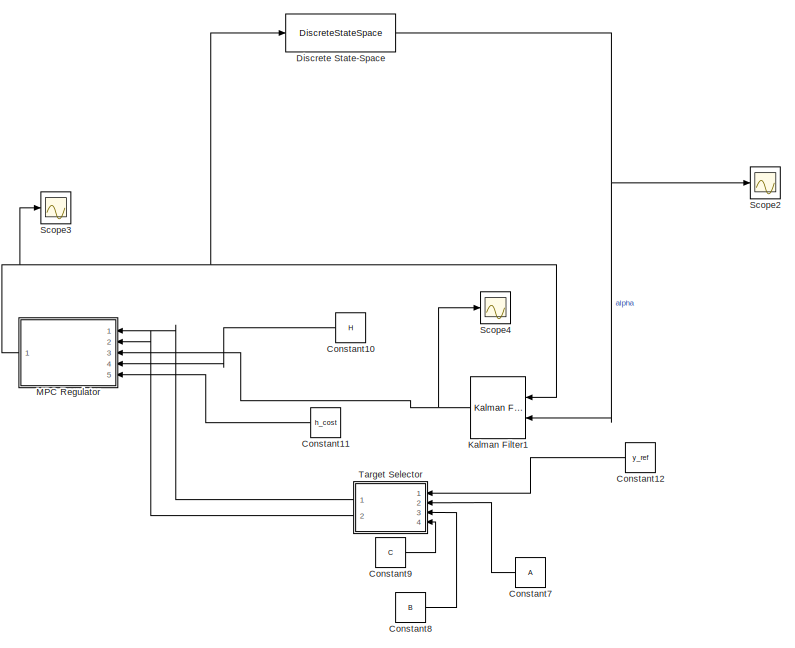
[diagram: root canvas - part 1/4, top right region]
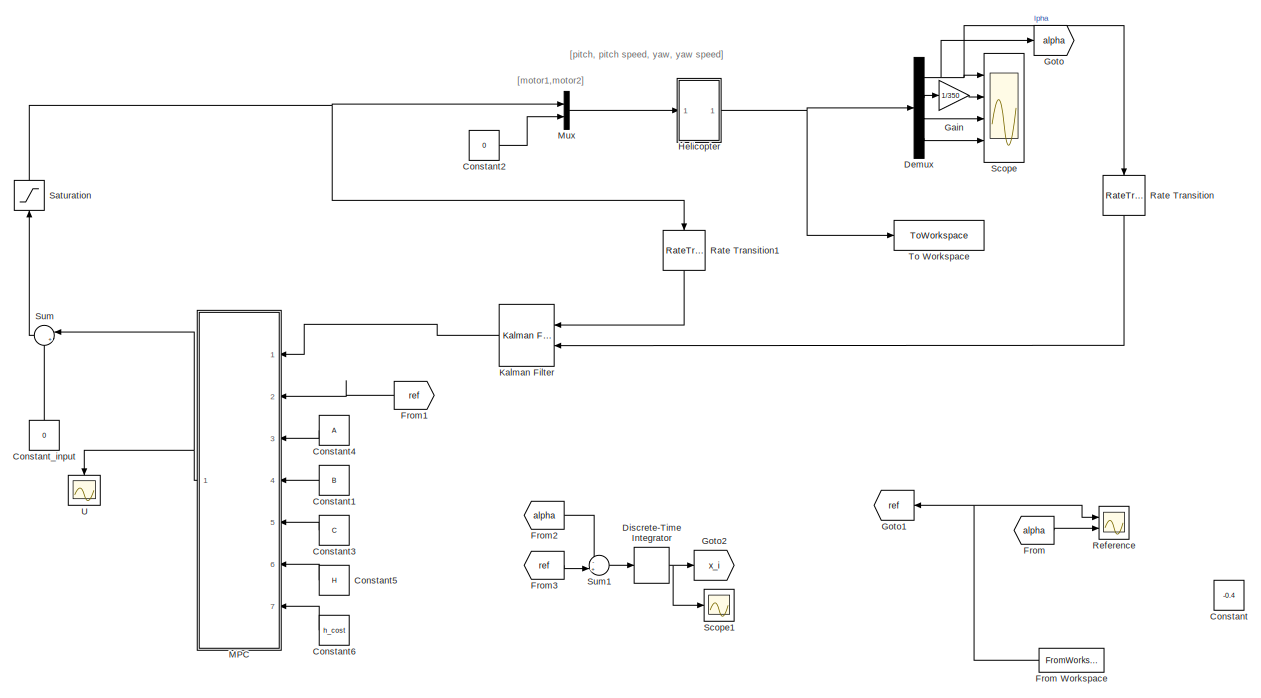
[diagram: root canvas - part 2/4, top left region]
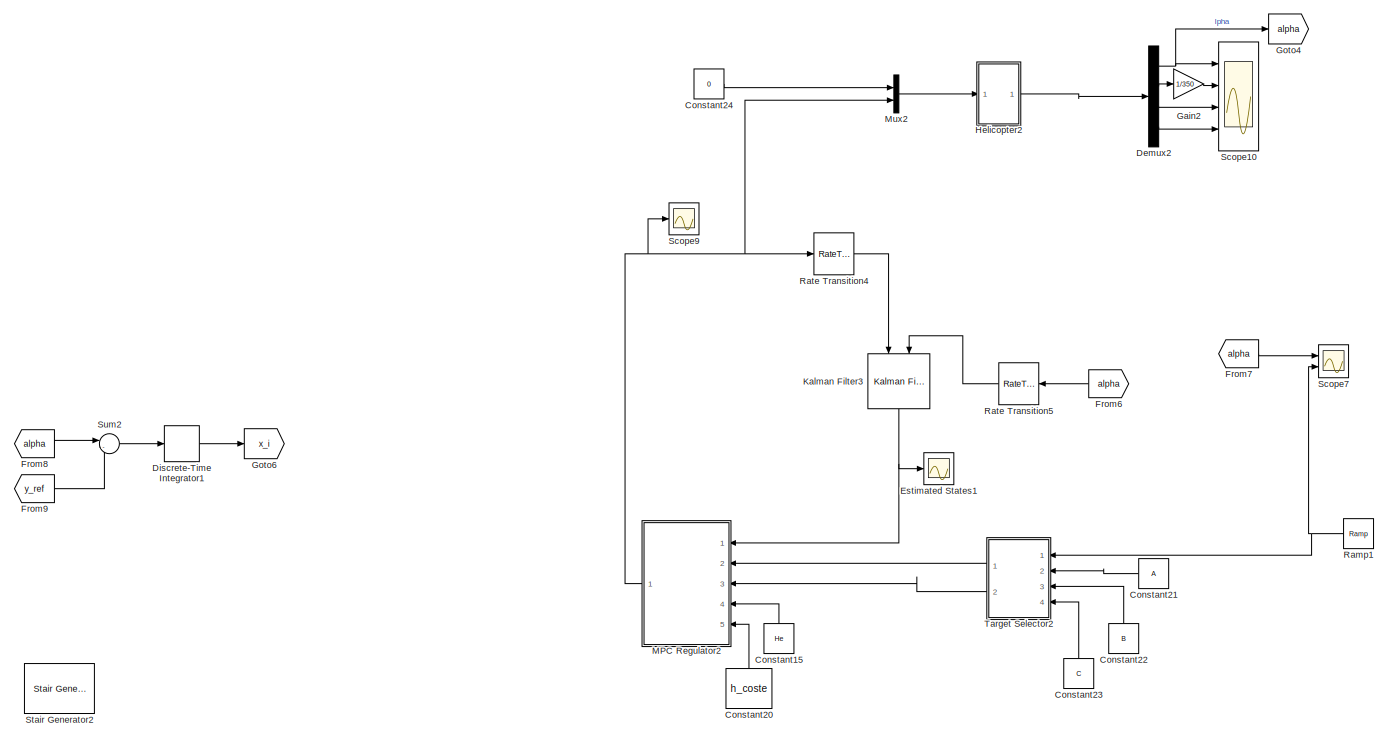
[diagram: root canvas - part 3/4, bottom right region]
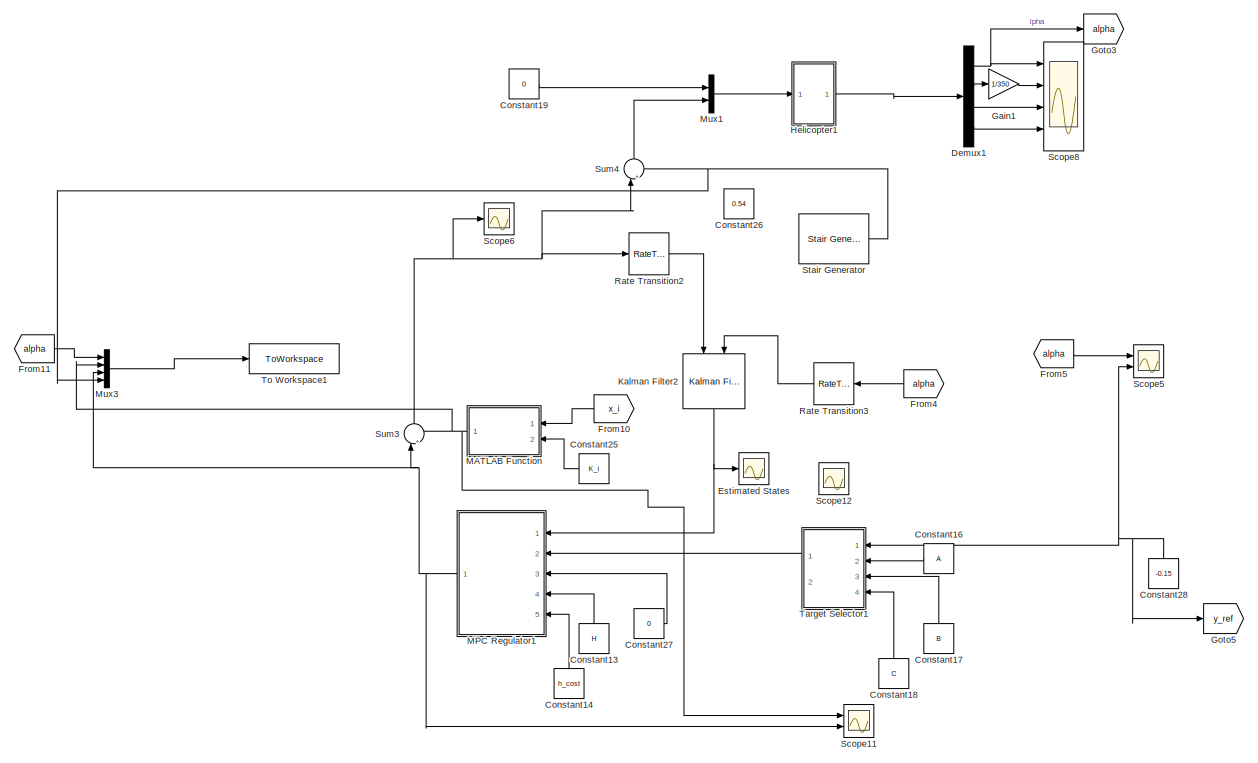
[diagram: root canvas - part 4/4, bottom left region]
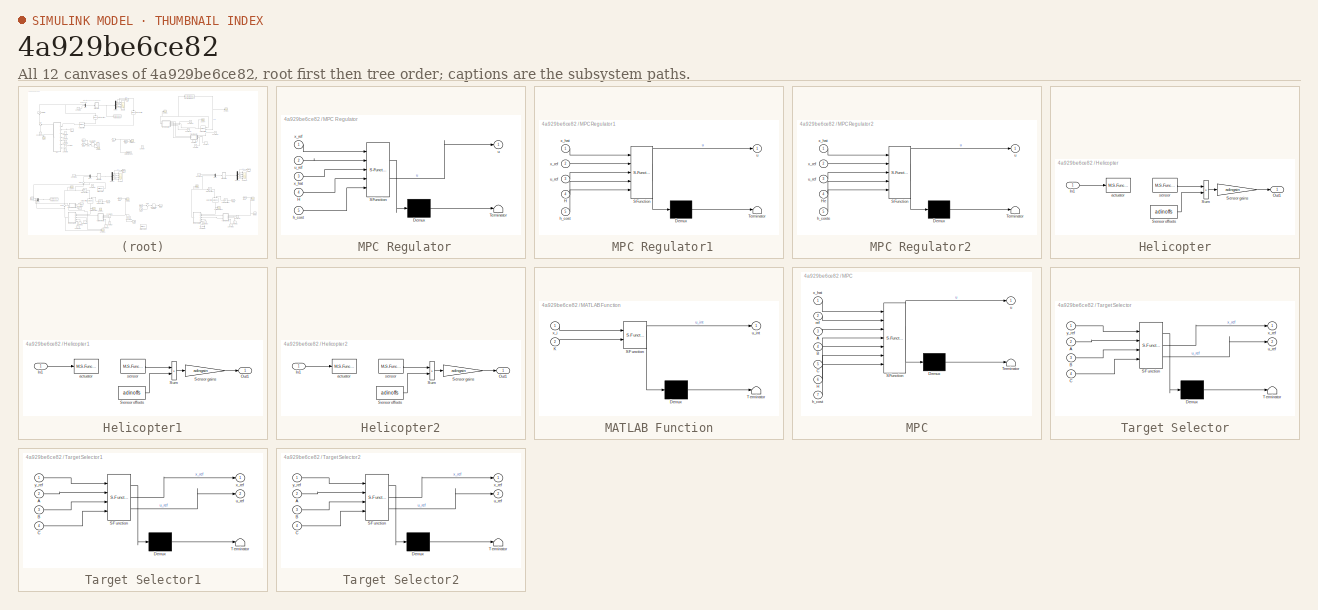
[diagram: thumbnail index - all 12 canvases of the model, root first then tree order]
MODEL slx_4a929be6ce82
KIND model
CONFIG AbsTol = auto
CONFIG EnableMultiTasking = off
CONFIG FixedStep = auto
CONFIG InitFcn = hwinit
CONFIG MaxStep = auto
CONFIG MinStep = auto
CONFIG RelTol = 1e-3
CONFIG SampleTimeConstraint = Unconstrained
CONFIG SolverName = ode45
CONFIG StartTime = 0.0
CONFIG StopTime = Tsim
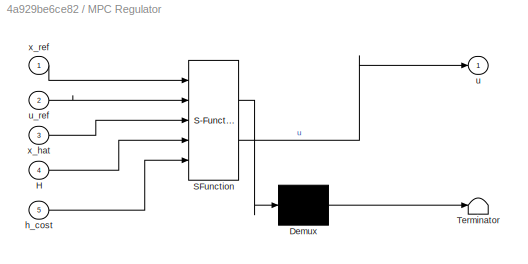
BLOCK [SubSystem]  MPC Regulator
  Commented = on
  ErrorFcn = Stateflow.Translate.translate
  NameLocation = top
  PermitHierarchicalResolution = ExplicitOnly
  Ports = [5, 1]
  RequestExecContextInheritance = off
  SFBlockType = MATLAB Function
  TreatAsAtomicUnit = on
BLOCK [Demux]  MPC Regulator/ Demux 
  Outputs = 1
  Ports = [1, 1]
BLOCK [S-Function]  MPC Regulator/ SFunction 
  EnableBusSupport = on
  FunctionName = sf_sfun
  PortCounts = [5 2]
  Ports = [5, 2]
  SFcnIsStateOwnerBlock = off
  SFunctionDeploymentMode = off
  Tag = Stateflow S-Function 1
BLOCK [Terminator]  MPC Regulator/ Terminator 
BLOCK [Inport]  MPC Regulator/H
  Port = 4
BLOCK [Inport]  MPC Regulator/h_cost
  Port = 5
BLOCK [Outport]  MPC Regulator/u
BLOCK [Inport]  MPC Regulator/u_ref
  Port = 2
BLOCK [Inport]  MPC Regulator/x_hat
  Port = 3
BLOCK [Inport]  MPC Regulator/x_ref
BLOCK [SubSystem]  MPC Regulator1
  ErrorFcn = Stateflow.Translate.translate
  NameLocation = top
  PermitHierarchicalResolution = ExplicitOnly
  Ports = [5, 1]
  RequestExecContextInheritance = off
  SFBlockType = MATLAB Function
  TreatAsAtomicUnit = on
BLOCK [Demux]  MPC Regulator1/ Demux 
  Outputs = 1
  Ports = [1, 1]
BLOCK [S-Function]  MPC Regulator1/ SFunction 
  EnableBusSupport = on
  FunctionName = sf_sfun
  PortCounts = [5 2]
  Ports = [5, 2]
  SFcnIsStateOwnerBlock = off
  SFunctionDeploymentMode = off
  Tag = Stateflow S-Function 4
BLOCK [Terminator]  MPC Regulator1/ Terminator 
BLOCK [Inport]  MPC Regulator1/H
  Port = 4
BLOCK [Inport]  MPC Regulator1/h_cost
  Port = 5
BLOCK [Outport]  MPC Regulator1/u
BLOCK [Inport]  MPC Regulator1/u_ref
  Port = 3
BLOCK [Inport]  MPC Regulator1/x_hat
BLOCK [Inport]  MPC Regulator1/x_ref
  Port = 2
BLOCK [SubSystem]  MPC Regulator2
  Commented = on
  ErrorFcn = Stateflow.Translate.translate
  NameLocation = top
  PermitHierarchicalResolution = ExplicitOnly
  Ports = [5, 1]
  RequestExecContextInheritance = off
  SFBlockType = MATLAB Function
  TreatAsAtomicUnit = on
BLOCK [Demux]  MPC Regulator2/ Demux 
  Outputs = 1
  Ports = [1, 1]
BLOCK [S-Function]  MPC Regulator2/ SFunction 
  EnableBusSupport = on
  FunctionName = sf_sfun
  PortCounts = [5 2]
  Ports = [5, 2]
  SFcnIsStateOwnerBlock = off
  SFunctionDeploymentMode = off
  Tag = Stateflow S-Function 6
BLOCK [Terminator]  MPC Regulator2/ Terminator 
BLOCK [Inport]  MPC Regulator2/He
  Port = 4
BLOCK [Inport]  MPC Regulator2/h_coste
  Port = 5
BLOCK [Outport]  MPC Regulator2/u
BLOCK [Inport]  MPC Regulator2/u_ref
  Port = 3
BLOCK [Inport]  MPC Regulator2/x_hat
BLOCK [Inport]  MPC Regulator2/x_ref
  Port = 2
BLOCK [Constant] Constant
  Commented = on
  NameLocation = right
  Value = -0.4
BLOCK [Constant] Constant1
  Commented = on
  NameLocation = top
  Value = B
  VectorParams1D = off
BLOCK [Constant] Constant10
  Commented = on
  NameLocation = top
  Value = H
BLOCK [Constant] Constant11
  Commented = on
  NameLocation = top
  Value = h_cost
BLOCK [Constant] Constant12
  Commented = on
  NameLocation = top
  Value = y_ref
BLOCK [Constant] Constant13
  NameLocation = right
  Value = H
BLOCK [Constant] Constant14
  NameLocation = right
  Value = h_cost
BLOCK [Constant] Constant15
  Commented = on
  NameLocation = right
  Value = He
BLOCK [Constant] Constant16
  NameLocation = top
  Value = A
BLOCK [Constant] Constant17
  NameLocation = right
  Value = B
  VectorParams1D = off
BLOCK [Constant] Constant18
  NameLocation = right
  Value = C
  VectorParams1D = off
BLOCK [Constant] Constant19
  Value = 0
BLOCK [Constant] Constant2
  Commented = on
  Value = 0
BLOCK [Constant] Constant20
  Commented = on
  NameLocation = right
  Value = h_coste
BLOCK [Constant] Constant21
  Commented = on
  NameLocation = top
  Value = A
BLOCK [Constant] Constant22
  Commented = on
  NameLocation = right
  Value = B
  VectorParams1D = off
BLOCK [Constant] Constant23
  Commented = on
  NameLocation = right
  Value = C
  VectorParams1D = off
BLOCK [Constant] Constant24
  Commented = on
  Value = 0
BLOCK [Constant] Constant25
  NameLocation = top
  Value = K_i
BLOCK [Constant] Constant26
  SampleTime = h
  Value = 0.54
BLOCK [Constant] Constant27
  Value = 0
BLOCK [Constant] Constant28
  NameLocation = right
  Value = -0.15
BLOCK [Constant] Constant3
  Commented = on
  NameLocation = top
  Value = C
  VectorParams1D = off
BLOCK [Constant] Constant4
  Commented = on
  NameLocation = top
  Value = A
BLOCK [Constant] Constant5
  Commented = on
  NameLocation = top
  Value = H
BLOCK [Constant] Constant6
  Commented = on
  NameLocation = top
  Value = h_cost
BLOCK [Constant] Constant7
  Commented = on
  NameLocation = top
  Value = A
BLOCK [Constant] Constant8
  Commented = on
  Value = B
  VectorParams1D = off
BLOCK [Constant] Constant9
  Commented = on
  Value = C
  VectorParams1D = off
BLOCK [Constant] Constant_input
  Commented = on
  Value = 0
BLOCK [Demux] Demux
  Commented = on
  Ports = [1, 4]
BLOCK [Demux] Demux1
  Ports = [1, 4]
BLOCK [Demux] Demux2
  Commented = on
  Ports = [1, 4]
BLOCK [DiscreteStateSpace] Discrete State-Space
  A = sysd.A
  B = sysd.B
  C = sysd.C
  Commented = on
  D = sysd.D
  InitialCondition = [0;0]
  SampleTime = h
BLOCK [DiscreteIntegrator] Discrete-Time Integrator
  Commented = on
  ICPrevOutput = DiscIntNeverNeededParam
  ICPrevScaledInput = DiscIntNeverNeededParam
  InitialConditionSetting = Auto
  Ports = [1, 1]
  SampleTime = -1
BLOCK [DiscreteIntegrator] Discrete-Time Integrator1
  ICPrevOutput = DiscIntNeverNeededParam
  ICPrevScaledInput = DiscIntNeverNeededParam
  InitialConditionSetting = Auto
  Ports = [1, 1]
  SampleTime = h
BLOCK [Scope] Estimated States
  Floating = off
  NumInputPorts = 1
  Ports = [1]
  ScopeSpecificationString = Simulink.scopes.TimeScopeBlockCfg('CurrentConfiguration', extmgr.ConfigurationSet(extmgr.Configuration('Core','General UI',true),extmgr.Configuration('Core','Source UI',true),extmgr.Configuration('Sources','WiredSimulink',true,'DataLoggingVariableName','ScopeData6'),extmgr.Configuration('Visuals','Time Domain',true,'SerializedDisplays',{struct('MinYLimReal','-0.83831','MaxYLimReal','1.90466','YLab...<+1424ch>
BLOCK [Scope] Estimated States1
  Commented = on
  Floating = off
  NumInputPorts = 1
  Ports = [1]
  ScopeSpecificationString = Simulink.scopes.TimeScopeBlockCfg('CurrentConfiguration', extmgr.ConfigurationSet(extmgr.Configuration('Core','General UI',true),extmgr.Configuration('Core','Source UI',true),extmgr.Configuration('Sources','WiredSimulink',true,'DataLoggingVariableName','ScopeData8'),extmgr.Configuration('Visuals','Time Domain',true,'SerializedDisplays',{struct('MinYLimReal','-0.11548','MaxYLimReal','0.13813','YLab...<+1430ch>
BLOCK [From] From
  Commented = on
  GotoTag = alpha
BLOCK [FromWorkspace] From Workspace
  Commented = on
  NameLocation = top
  VariableName = simin
BLOCK [From] From1
  Commented = on
  GotoTag = ref
  NameLocation = top
BLOCK [From] From10
  GotoTag = x_i
  NameLocation = top
BLOCK [From] From11
  GotoTag = alpha
BLOCK [From] From2
  Commented = on
  GotoTag = alpha
BLOCK [From] From3
  Commented = on
  GotoTag = ref
BLOCK [From] From4
  GotoTag = alpha
  NameLocation = top
BLOCK [From] From5
  GotoTag = alpha
BLOCK [From] From6
  Commented = on
  GotoTag = alpha
  NameLocation = top
BLOCK [From] From7
  Commented = on
  GotoTag = alpha
BLOCK [From] From8
  GotoTag = alpha
BLOCK [From] From9
  GotoTag = y_ref
BLOCK [Gain] Gain
  Commented = on
  Gain = 1/350
BLOCK [Gain] Gain1
  Gain = 1/350
BLOCK [Gain] Gain2
  Commented = on
  Gain = 1/350
BLOCK [Goto] Goto
  Commented = on
  GotoTag = alpha
BLOCK [Goto] Goto1
  Commented = on
  GotoTag = ref
  NameLocation = top
BLOCK [Goto] Goto2
  Commented = on
  GotoTag = x_i
BLOCK [Goto] Goto3
  GotoTag = alpha
BLOCK [Goto] Goto4
  Commented = on
  GotoTag = alpha
BLOCK [Goto] Goto5
  GotoTag = y_ref
BLOCK [Goto] Goto6
  GotoTag = x_i
BLOCK [SubSystem] Helicopter
  Commented = on
  Ports = [1, 1]
  RequestExecContextInheritance = off
BLOCK [Inport] Helicopter/In1
BLOCK [Outport] Helicopter/Out1
BLOCK [Gain] Helicopter/Sensor gains
  Gain = adingain
BLOCK [Constant] Helicopter/Sensor offsets
  Value = adinoffs
BLOCK [Sum] Helicopter/Sum
  IconShape = rectangular
  Ports = [2, 1]
BLOCK [M-S-Function] Helicopter/actuator
  FunctionName = sf_heli_out
  Parameters = HeliMexHandle,Ts
  Ports = [1]
BLOCK [M-S-Function] Helicopter/sensor
  FunctionName = sf_heli_in
  Parameters = HeliMexHandle
  Ports = [0, 1]
BLOCK [SubSystem] Helicopter1
  Ports = [1, 1]
  RequestExecContextInheritance = off
BLOCK [Inport] Helicopter1/In1
BLOCK [Outport] Helicopter1/Out1
BLOCK [Gain] Helicopter1/Sensor gains
  Gain = adingain
BLOCK [Constant] Helicopter1/Sensor offsets
  Value = adinoffs
BLOCK [Sum] Helicopter1/Sum
  IconShape = rectangular
  Ports = [2, 1]
BLOCK [M-S-Function] Helicopter1/actuator
  FunctionName = sf_heli_out
  Parameters = HeliMexHandle,Ts
  Ports = [1]
BLOCK [M-S-Function] Helicopter1/sensor
  FunctionName = sf_heli_in
  Parameters = HeliMexHandle
  Ports = [0, 1]
BLOCK [SubSystem] Helicopter2
  Commented = on
  Ports = [1, 1]
  RequestExecContextInheritance = off
BLOCK [Inport] Helicopter2/In1
BLOCK [Outport] Helicopter2/Out1
BLOCK [Gain] Helicopter2/Sensor gains
  Gain = adingain
BLOCK [Constant] Helicopter2/Sensor offsets
  Value = adinoffs
BLOCK [Sum] Helicopter2/Sum
  IconShape = rectangular
  Ports = [2, 1]
BLOCK [M-S-Function] Helicopter2/actuator
  FunctionName = sf_heli_out
  Parameters = HeliMexHandle,Ts
  Ports = [1]
BLOCK [M-S-Function] Helicopter2/sensor
  FunctionName = sf_heli_in
  Parameters = HeliMexHandle
  Ports = [0, 1]
BLOCK [Reference] Kalman Filter  REF=ctrlSharedLib/Kalman Filter
  Commented = on
  NameLocation = top
  Ports = [2, 1]
  SourceBlock = ctrlSharedLib/Kalman Filter
  SourceProductBaseCode = CT,ID
  SourceType = ctrlKalmanFilter
BLOCK [Reference] Kalman Filter1  REF=ctrlSharedLib/Kalman Filter
  Commented = on
  NameLocation = top
  Ports = [2, 1]
  SourceBlock = ctrlSharedLib/Kalman Filter
  SourceProductBaseCode = CT,ID
  SourceType = ctrlKalmanFilter
BLOCK [Reference] Kalman Filter2  REF=ctrlSharedLib/Kalman Filter
  NameLocation = left
  Ports = [2, 1]
  SourceBlock = ctrlSharedLib/Kalman Filter
  SourceProductBaseCode = CT,ID
  SourceType = ctrlKalmanFilter
BLOCK [Reference] Kalman Filter3  REF=ctrlSharedLib/Kalman Filter
  Commented = on
  NameLocation = left
  Ports = [2, 1]
  SourceBlock = ctrlSharedLib/Kalman Filter
  SourceProductBaseCode = CT,ID
  SourceType = ctrlKalmanFilter
BLOCK [SubSystem] MATLAB Function
  ErrorFcn = Stateflow.Translate.translate
  NameLocation = top
  PermitHierarchicalResolution = ExplicitOnly
  Ports = [2, 1]
  RequestExecContextInheritance = off
  SFBlockType = MATLAB Function
  TreatAsAtomicUnit = on
BLOCK [Demux] MATLAB Function/ Demux 
  Outputs = 1
  Ports = [1, 1]
BLOCK [S-Function] MATLAB Function/ SFunction 
  EnableBusSupport = on
  FunctionName = sf_sfun
  PortCounts = [2 2]
  Ports = [2, 2]
  SFcnIsStateOwnerBlock = off
  SFunctionDeploymentMode = off
  Tag = Stateflow S-Function 8
BLOCK [Terminator] MATLAB Function/ Terminator 
BLOCK [Inport] MATLAB Function/K
  Port = 2
BLOCK [Outport] MATLAB Function/u_int
BLOCK [Inport] MATLAB Function/x_i
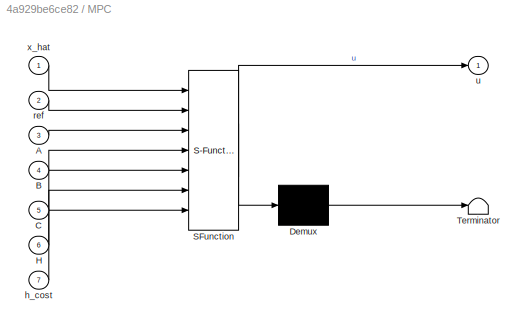
BLOCK [SubSystem] MPC
  Commented = on
  ErrorFcn = Stateflow.Translate.translate
  NameLocation = top
  PermitHierarchicalResolution = ExplicitOnly
  Ports = [7, 1]
  RequestExecContextInheritance = off
  SFBlockType = MATLAB Function
  TreatAsAtomicUnit = on
BLOCK [Demux] MPC/ Demux 
  Outputs = 1
  Ports = [1, 1]
BLOCK [S-Function] MPC/ SFunction 
  EnableBusSupport = on
  FunctionName = sf_sfun
  PortCounts = [7 2]
  Ports = [7, 2]
  SFcnIsStateOwnerBlock = off
  SFunctionDeploymentMode = off
  Tag = Stateflow S-Function 2
BLOCK [Terminator] MPC/ Terminator 
BLOCK [Inport] MPC/A
  Port = 3
BLOCK [Inport] MPC/B
  Port = 4
BLOCK [Inport] MPC/C
  Port = 5
BLOCK [Inport] MPC/H
  Port = 6
BLOCK [Inport] MPC/h_cost
  Port = 7
BLOCK [Inport] MPC/ref
  Port = 2
BLOCK [Outport] MPC/u
BLOCK [Inport] MPC/x_hat
BLOCK [Mux] Mux
  Commented = on
  DisplayOption = bar
  Inputs = 2
  Ports = [2, 1]
BLOCK [Mux] Mux1
  DisplayOption = bar
  Inputs = 2
  Ports = [2, 1]
BLOCK [Mux] Mux2
  Commented = on
  DisplayOption = bar
  Inputs = 2
  Ports = [2, 1]
BLOCK [Mux] Mux3
  DisplayOption = bar
  Ports = [4, 1]
BLOCK [Reference] Ramp1  REF=simulink/Sources/Ramp
  Commented = on
  NameLocation = top
  Ports = [0, 1]
  SourceBlock = simulink/Sources/Ramp
  SourceProductBaseCode = SL
  SourceType = Ramp
BLOCK [RateTransition] Rate Transition
  Commented = on
  NameLocation = left
  OutPortSampleTime = h
BLOCK [RateTransition] Rate Transition1
  Commented = on
  NameLocation = left
  OutPortSampleTime = h
BLOCK [RateTransition] Rate Transition2
  OutPortSampleTime = h
BLOCK [RateTransition] Rate Transition3
  NameLocation = top
  OutPortSampleTime = h
BLOCK [RateTransition] Rate Transition4
  Commented = on
  OutPortSampleTime = h
BLOCK [RateTransition] Rate Transition5
  Commented = on
  NameLocation = top
  OutPortSampleTime = h
BLOCK [Scope] Reference
  Commented = on
  Floating = off
  NumInputPorts = 2
  Ports = [2]
  ScopeSpecificationString = Simulink.scopes.TimeScopeBlockCfg('CurrentConfiguration', extmgr.ConfigurationSet(extmgr.Configuration('Core','General UI',true),extmgr.Configuration('Core','Source UI',true),extmgr.Configuration('Sources','WiredSimulink',true,'DataLoggingVariableName','ScopeData1'),extmgr.Configuration('Visuals','Time Domain',true,'SerializedDisplays',{struct('MinYLimReal','-0.53939','MaxYLimReal','0.02243','YLab...<+1406ch>
BLOCK [Saturate] Saturation
  Commented = on
  LowerLimit = -1
  NameLocation = right
  UpperLimit = 1
BLOCK [Scope] Scope
  Commented = on
  Floating = off
  NumInputPorts = 4
  Ports = [4]
  ScopeSpecificationString = Simulink.scopes.TimeScopeBlockCfg('CurrentConfiguration', extmgr.ConfigurationSet(extmgr.Configuration('Core','General UI',true),extmgr.Configuration('Core','Source UI',true),extmgr.Configuration('Sources','WiredSimulink',true,'DataLogging',true,'DataLoggingVariableName','y','DataLoggingSaveFormat','StructureWithTime','DataLoggingDecimation','1','DataLoggingDecimateData',true),extmgr.Configuration...<+3653ch>
BLOCK [Scope] Scope1
  Commented = on
  Floating = off
  NumInputPorts = 1
  Ports = [1]
  ScopeSpecificationString = Simulink.scopes.TimeScopeBlockCfg('CurrentConfiguration', extmgr.ConfigurationSet(extmgr.Configuration('Core','General UI',true),extmgr.Configuration('Core','Source UI',true),extmgr.Configuration('Sources','WiredSimulink',true,'DataLoggingVariableName','ScopeData2'),extmgr.Configuration('Visuals','Time Domain',true),extmgr.Configuration('Tools','Plot Navigation',true),extmgr.Configuration('Tools',...<+40ch>
BLOCK [Scope] Scope10
  Commented = on
  Floating = off
  NumInputPorts = 4
  Ports = [4]
  ScopeSpecificationString = Simulink.scopes.TimeScopeBlockCfg('CurrentConfiguration', extmgr.ConfigurationSet(extmgr.Configuration('Core','General UI',true),extmgr.Configuration('Core','Source UI',true),extmgr.Configuration('Sources','WiredSimulink',true,'DataLogging',true,'DataLoggingVariableName','ScopeData9','DataLoggingSaveFormat','StructureWithTime','DataLoggingDecimation','1','DataLoggingDecimateData',true),extmgr.Conf...<+3662ch>
BLOCK [Scope] Scope11
  Floating = off
  NumInputPorts = 2
  Ports = [2]
  ScopeSpecificationString = Simulink.scopes.TimeScopeBlockCfg('CurrentConfiguration', extmgr.ConfigurationSet(extmgr.Configuration('Core','General UI',true),extmgr.Configuration('Core','Source UI',true),extmgr.Configuration('Sources','WiredSimulink',true,'DataLoggingVariableName','ScopeData1'),extmgr.Configuration('Visuals','Time Domain',true,'SerializedDisplays',{struct('MinYLimReal','-1.39362','MaxYLimReal','1.82151','YLab...<+1442ch>
BLOCK [Scope] Scope12
  Floating = off
  NumInputPorts = 1
  Ports = [1]
  ScopeSpecificationString = Simulink.scopes.TimeScopeBlockCfg('CurrentConfiguration', extmgr.ConfigurationSet(extmgr.Configuration('Core','General UI',true),extmgr.Configuration('Core','Source UI',true),extmgr.Configuration('Sources','WiredSimulink',true,'DataLoggingVariableName','ScopeData2'),extmgr.Configuration('Visuals','Time Domain',true,'SerializedDisplays',{struct('MinYLimReal','-1.00000','MaxYLimReal','1.00000','YLab...<+1433ch>
BLOCK [Scope] Scope2
  Commented = on
  Floating = off
  NumInputPorts = 1
  Ports = [1]
  ScopeSpecificationString = Simulink.scopes.TimeScopeBlockCfg('CurrentConfiguration', extmgr.ConfigurationSet(extmgr.Configuration('Core','General UI',true),extmgr.Configuration('Core','Source UI',true),extmgr.Configuration('Sources','WiredSimulink',true,'DataLoggingVariableName','ScopeData1'),extmgr.Configuration('Visuals','Time Domain',true,'SerializedDisplays',{struct('MinYLimReal','-0.12267','MaxYLimReal','0.01363','YLab...<+1364ch>
BLOCK [Scope] Scope3
  Commented = on
  Floating = off
  NumInputPorts = 1
  Ports = [1]
  ScopeSpecificationString = Simulink.scopes.TimeScopeBlockCfg('CurrentConfiguration', extmgr.ConfigurationSet(extmgr.Configuration('Core','General UI',true),extmgr.Configuration('Core','Source UI',true),extmgr.Configuration('Sources','WiredSimulink',true,'DataLoggingVariableName','ScopeData2'),extmgr.Configuration('Visuals','Time Domain',true,'SerializedDisplays',{struct('MinYLimReal','-0.03147','MaxYLimReal','1.11461','YLab...<+1417ch>
BLOCK [Scope] Scope4
  Commented = on
  Floating = off
  NumInputPorts = 1
  Ports = [1]
  ScopeSpecificationString = Simulink.scopes.TimeScopeBlockCfg('CurrentConfiguration', extmgr.ConfigurationSet(extmgr.Configuration('Core','General UI',true),extmgr.Configuration('Core','Source UI',true),extmgr.Configuration('Sources','WiredSimulink',true,'DataLoggingVariableName','ScopeData3'),extmgr.Configuration('Visuals','Time Domain',true,'SerializedDisplays',{struct('MinYLimReal','-0.27421','MaxYLimReal','0.0547','YLabe...<+1392ch>
BLOCK [Scope] Scope5
  Floating = off
  NumInputPorts = 2
  Ports = [2]
  ScopeSpecificationString = Simulink.scopes.TimeScopeBlockCfg('CurrentConfiguration', extmgr.ConfigurationSet(extmgr.Configuration('Core','General UI',true),extmgr.Configuration('Core','Source UI',true),extmgr.Configuration('Sources','WiredSimulink',true,'DataLoggingVariableName','ScopeData4'),extmgr.Configuration('Visuals','Time Domain',true,'SerializedDisplays',{struct('MinYLimReal','-0.54437','MaxYLimReal','0.23604','YLab...<+1475ch>
BLOCK [Scope] Scope6
  Floating = off
  NumInputPorts = 1
  Ports = [1]
  ScopeSpecificationString = Simulink.scopes.TimeScopeBlockCfg('CurrentConfiguration', extmgr.ConfigurationSet(extmgr.Configuration('Core','General UI',true),extmgr.Configuration('Core','Source UI',true),extmgr.Configuration('Sources','WiredSimulink',true,'DataLoggingVariableName','ScopeData5'),extmgr.Configuration('Visuals','Time Domain',true,'SerializedDisplays',{struct('MinYLimReal','-0.63919','MaxYLimReal','1.18213','YLab...<+1462ch>
BLOCK [Scope] Scope7
  Commented = on
  Floating = off
  NumInputPorts = 2
  Ports = [2]
  ScopeSpecificationString = Simulink.scopes.TimeScopeBlockCfg('CurrentConfiguration', extmgr.ConfigurationSet(extmgr.Configuration('Core','General UI',true),extmgr.Configuration('Core','Source UI',true),extmgr.Configuration('Sources','WiredSimulink',true,'DataLoggingVariableName','ScopeData10'),extmgr.Configuration('Visuals','Time Domain',true,'SerializedDisplays',{struct('MinYLimReal','-0.11505','MaxYLimReal','0.02301','YLa...<+1374ch>
BLOCK [Scope] Scope8
  Floating = off
  NumInputPorts = 4
  Ports = [4]
  ScopeSpecificationString = Simulink.scopes.TimeScopeBlockCfg('CurrentConfiguration', extmgr.ConfigurationSet(extmgr.Configuration('Core','General UI',true),extmgr.Configuration('Core','Source UI',true),extmgr.Configuration('Sources','WiredSimulink',true,'DataLogging',true,'DataLoggingVariableName','ScopeData7','DataLoggingSaveFormat','StructureWithTime','DataLoggingDecimation','1','DataLoggingDecimateData',true),extmgr.Conf...<+3715ch>
BLOCK [Scope] Scope9
  Commented = on
  Floating = off
  NumInputPorts = 1
  Ports = [1]
  ScopeSpecificationString = Simulink.scopes.TimeScopeBlockCfg('CurrentConfiguration', extmgr.ConfigurationSet(extmgr.Configuration('Core','General UI',true),extmgr.Configuration('Core','Source UI',true),extmgr.Configuration('Sources','WiredSimulink',true,'DataLoggingVariableName','ScopeData11'),extmgr.Configuration('Visuals','Time Domain',true,'SerializedDisplays',{struct('MinYLimReal','-0.63919','MaxYLimReal','1.18213','YLa...<+1419ch>
BLOCK [Reference] Stair Generator  REF=eeStairGenerator/Stair Generator
  Ports = [0, 1]
  SourceBlock = eeStairGenerator/Stair Generator
  SourceProductBaseCode = PS
  SourceType = Stair Generator
BLOCK [Reference] Stair Generator2  REF=eeStairGenerator/Stair Generator
  NameLocation = top
  Ports = [0, 1]
  SourceBlock = eeStairGenerator/Stair Generator
  SourceProductBaseCode = PS
  SourceType = Stair Generator
BLOCK [Sum] Sum
  Commented = on
  Inputs = |++
  NameLocation = top
  Ports = [2, 1]
BLOCK [Sum] Sum1
  Commented = on
  Inputs = -+|
  Ports = [2, 1]
BLOCK [Sum] Sum2
  Inputs = |-+
  Ports = [2, 1]
BLOCK [Sum] Sum3
  Inputs = |++
  NameLocation = right
  Ports = [2, 1]
BLOCK [Sum] Sum4
  Inputs = |++
  NameLocation = right
  Ports = [2, 1]
BLOCK [SubSystem] Target Selector
  Commented = on
  ErrorFcn = Stateflow.Translate.translate
  NameLocation = top
  PermitHierarchicalResolution = ExplicitOnly
  Ports = [4, 2]
  RequestExecContextInheritance = off
  SFBlockType = MATLAB Function
  TreatAsAtomicUnit = on
BLOCK [Demux] Target Selector/ Demux 
  Outputs = 1
  Ports = [1, 1]
BLOCK [S-Function] Target Selector/ SFunction 
  EnableBusSupport = on
  FunctionName = sf_sfun
  PortCounts = [4 3]
  Ports = [4, 3]
  SFcnIsStateOwnerBlock = off
  SFunctionDeploymentMode = off
  Tag = Stateflow S-Function 3
BLOCK [Terminator] Target Selector/ Terminator 
BLOCK [Inport] Target Selector/A
  Port = 2
BLOCK [Inport] Target Selector/B
  Port = 3
BLOCK [Inport] Target Selector/C
  Port = 4
BLOCK [Outport] Target Selector/u_ref
  Port = 2
BLOCK [Outport] Target Selector/x_ref
BLOCK [Inport] Target Selector/y_ref
BLOCK [SubSystem] Target Selector1
  ErrorFcn = Stateflow.Translate.translate
  NameLocation = top
  PermitHierarchicalResolution = ExplicitOnly
  Ports = [4, 2]
  RequestExecContextInheritance = off
  SFBlockType = MATLAB Function
  TreatAsAtomicUnit = on
BLOCK [Demux] Target Selector1/ Demux 
  Outputs = 1
  Ports = [1, 1]
BLOCK [S-Function] Target Selector1/ SFunction 
  EnableBusSupport = on
  FunctionName = sf_sfun
  PortCounts = [4 3]
  Ports = [4, 3]
  SFcnIsStateOwnerBlock = off
  SFunctionDeploymentMode = off
  Tag = Stateflow S-Function 5
BLOCK [Terminator] Target Selector1/ Terminator 
BLOCK [Inport] Target Selector1/A
  Port = 2
BLOCK [Inport] Target Selector1/B
  Port = 3
BLOCK [Inport] Target Selector1/C
  Port = 4
BLOCK [Outport] Target Selector1/u_ref
  Port = 2
BLOCK [Outport] Target Selector1/x_ref
BLOCK [Inport] Target Selector1/y_ref
BLOCK [SubSystem] Target Selector2
  Commented = on
  ErrorFcn = Stateflow.Translate.translate
  NameLocation = top
  PermitHierarchicalResolution = ExplicitOnly
  Ports = [4, 2]
  RequestExecContextInheritance = off
  SFBlockType = MATLAB Function
  TreatAsAtomicUnit = on
BLOCK [Demux] Target Selector2/ Demux 
  Outputs = 1
  Ports = [1, 1]
BLOCK [S-Function] Target Selector2/ SFunction 
  EnableBusSupport = on
  FunctionName = sf_sfun
  PortCounts = [4 3]
  Ports = [4, 3]
  SFcnIsStateOwnerBlock = off
  SFunctionDeploymentMode = off
  Tag = Stateflow S-Function 7
BLOCK [Terminator] Target Selector2/ Terminator 
BLOCK [Inport] Target Selector2/A
  Port = 2
BLOCK [Inport] Target Selector2/B
  Port = 3
BLOCK [Inport] Target Selector2/C
  Port = 4
BLOCK [Outport] Target Selector2/u_ref
  Port = 2
BLOCK [Outport] Target Selector2/x_ref
BLOCK [Inport] Target Selector2/y_ref
BLOCK [ToWorkspace] To Workspace
  Commented = on
  FixptAsFi = on
  MaxDataPoints = inf
  Ports = [1]
  SampleTime = -1
  SaveFormat = Structure With Time
  VariableName = simout
BLOCK [ToWorkspace] To Workspace1
  FixptAsFi = on
  MaxDataPoints = inf
  Ports = [1]
  SampleTime = h
  SaveFormat = Timeseries
  VariableName = DATA
BLOCK [Scope] U
  Commented = on
  Floating = off
  NameLocation = left
  NumInputPorts = 1
  Ports = [1]
  ScopeSpecificationString = Simulink.scopes.TimeScopeBlockCfg('CurrentConfiguration', extmgr.ConfigurationSet(extmgr.Configuration('Core','General UI',true),extmgr.Configuration('Core','Source UI',true),extmgr.Configuration('Sources','WiredSimulink',true,'DataLoggingVariableName','ScopeData2'),extmgr.Configuration('Visuals','Time Domain',true,'SerializedDisplays',{struct('MinYLimReal','-0.31994','MaxYLimReal','0.54568','YLab...<+1445ch>
ANNOTATION (root): [motor1,motor2]
ANNOTATION (root): [pitch, pitch speed, yaw, yaw speed]
NET  MPC Regulator1:1 -> Mux3:3, Scope11:2, Sum3:1
NET  MPC Regulator2:1 -> Mux2:2, Rate Transition4:1, Scope9:1
NET  MPC Regulator:1 -> Discrete State-Space:1, Kalman Filter1:1, Scope3:1
LINE Constant10:1 ->  MPC Regulator:4
LINE Constant11:1 ->  MPC Regulator:5
LINE Constant12:1 -> Target Selector:1
LINE Constant13:1 ->  MPC Regulator1:4
LINE Constant14:1 ->  MPC Regulator1:5
LINE Constant15:1 ->  MPC Regulator2:4
LINE Constant16:1 -> Target Selector1:2
LINE Constant17:1 -> Target Selector1:3
LINE Constant18:1 -> Target Selector1:4
LINE Constant19:1 -> Mux1:1
LINE Constant1:1 -> MPC:4
LINE Constant20:1 ->  MPC Regulator2:5
LINE Constant21:1 -> Target Selector2:2
LINE Constant22:1 -> Target Selector2:3
LINE Constant23:1 -> Target Selector2:4
LINE Constant24:1 -> Mux2:1
LINE Constant25:1 -> MATLAB Function:2
LINE Constant27:1 ->  MPC Regulator1:3
NET Constant28:1 -> Goto5:1, Scope5:2, Target Selector1:1
LINE Constant2:1 -> Mux:2
LINE Constant3:1 -> MPC:5
LINE Constant4:1 -> MPC:3
LINE Constant5:1 -> MPC:6
LINE Constant6:1 -> MPC:7
LINE Constant7:1 -> Target Selector:2
LINE Constant8:1 -> Target Selector:3
LINE Constant9:1 -> Target Selector:4
LINE Constant_input:1 -> Sum:2
NET Demux1:1 -> Goto3:1, Scope8:1
LINE Demux1:2 -> Gain1:1
LINE Demux1:3 -> Scope8:3
LINE Demux1:4 -> Scope8:4
NET Demux2:1 -> Goto4:1, Scope10:1
LINE Demux2:2 -> Gain2:1
LINE Demux2:3 -> Scope10:3
LINE Demux2:4 -> Scope10:4
NET Demux:1 -> Goto:1, Rate Transition:1, Scope:1
LINE Demux:2 -> Gain:1
LINE Demux:3 -> Scope:3
LINE Demux:4 -> Scope:4
NET Discrete State-Space:1 -> Kalman Filter1:2, Scope2:1
LINE Discrete-Time Integrator1:1 -> Goto6:1
NET Discrete-Time Integrator:1 -> Goto2:1, Scope1:1
NET From Workspace:1 -> Goto1:1, Reference:1
LINE From10:1 -> MATLAB Function:1
LINE From11:1 -> Mux3:1
LINE From1:1 -> MPC:2
LINE From2:1 -> Sum1:1
LINE From3:1 -> Sum1:2
LINE From4:1 -> Rate Transition3:1
LINE From5:1 -> Scope5:1
LINE From6:1 -> Rate Transition5:1
LINE From7:1 -> Scope7:1
LINE From8:1 -> Sum2:1
LINE From9:1 -> Sum2:2
LINE From:1 -> Reference:2
LINE Gain1:1 -> Scope8:2
LINE Gain2:1 -> Scope10:2
LINE Gain:1 -> Scope:2
LINE Helicopter/In1:1 -> Helicopter/actuator:1
LINE Helicopter/Sensor gains:1 -> Helicopter/Out1:1
LINE Helicopter/Sensor offsets:1 -> Helicopter/Sum:2
LINE Helicopter/Sum:1 -> Helicopter/Sensor gains:1
LINE Helicopter/sensor:1 -> Helicopter/Sum:1
LINE Helicopter1/In1:1 -> Helicopter1/actuator:1
LINE Helicopter1/Sensor gains:1 -> Helicopter1/Out1:1
LINE Helicopter1/Sensor offsets:1 -> Helicopter1/Sum:2
LINE Helicopter1/Sum:1 -> Helicopter1/Sensor gains:1
LINE Helicopter1/sensor:1 -> Helicopter1/Sum:1
LINE Helicopter1:1 -> Demux1:1
LINE Helicopter2/In1:1 -> Helicopter2/actuator:1
LINE Helicopter2/Sensor gains:1 -> Helicopter2/Out1:1
LINE Helicopter2/Sensor offsets:1 -> Helicopter2/Sum:2
LINE Helicopter2/Sum:1 -> Helicopter2/Sensor gains:1
LINE Helicopter2/sensor:1 -> Helicopter2/Sum:1
LINE Helicopter2:1 -> Demux2:1
NET Helicopter:1 -> Demux:1, To Workspace:1
NET Kalman Filter1:1 ->  MPC Regulator:3, Scope4:1
NET Kalman Filter2:1 ->  MPC Regulator1:1, Estimated States:1
NET Kalman Filter3:1 ->  MPC Regulator2:1, Estimated States1:1
LINE Kalman Filter:1 -> MPC:1
NET MATLAB Function:1 -> Mux3:2, Scope11:1, Sum3:2
NET MPC:1 -> Sum:1, U:1
LINE Mux1:1 -> Helicopter1:1
LINE Mux2:1 -> Helicopter2:1
LINE Mux3:1 -> To Workspace1:1
LINE Mux:1 -> Helicopter:1
NET Ramp1:1 -> Scope7:2, Target Selector2:1
LINE Rate Transition1:1 -> Kalman Filter:1
LINE Rate Transition2:1 -> Kalman Filter2:1
LINE Rate Transition3:1 -> Kalman Filter2:2
LINE Rate Transition4:1 -> Kalman Filter3:1
LINE Rate Transition5:1 -> Kalman Filter3:2
LINE Rate Transition:1 -> Kalman Filter:2
NET Saturation:1 -> Mux:1, Rate Transition1:1
NET Stair Generator:1 -> Mux3:4, Sum4:2
LINE Sum1:1 -> Discrete-Time Integrator:1
LINE Sum2:1 -> Discrete-Time Integrator1:1
NET Sum3:1 -> Rate Transition2:1, Scope6:1, Sum4:1
LINE Sum4:1 -> Mux1:2
LINE Sum:1 -> Saturation:1
LINE Target Selector1:1 ->  MPC Regulator1:2
LINE Target Selector2:1 ->  MPC Regulator2:2
LINE Target Selector2:2 ->  MPC Regulator2:3
LINE Target Selector:1 ->  MPC Regulator:1
LINE Target Selector:2 ->  MPC Regulator:2
note: NET lines group one-source signal fan-out (src -> all destinations, sorted); 1:1 wires keep LINE
CHART  MPC Regulator states=1 transitions=1
  STATE_LABEL 'eML_blk_kernel()'
  STATE_LABEL "SCRIPT:\nfunction u = fcn(x_ref, u_ref, x_hat, H, h_cost)\n    u = zeros(1,1);\n    x_0=x_hat;\n    \n    N = 10;\n    \n    coder.extrinsic('quadprog');\n    % options = optimoptions(@quadprog);\n    \n    lb = -1*ones(N, 1);\n    ub = -1*lb;\n    \n    uN = quadprog(H,(h_cost*[x_0; x_ref; u_ref]),[],[],[],[],lb,ub,[]);\n\n    % Select the first input only\n    u=uN(1);\n    \nend\n\n"
CHART MPC states=1 transitions=1
  STATE_LABEL 'eML_blk_kernel()'
  STATE_LABEL "SCRIPT:\nfunction u = fcn(x_hat, ref, A, B, C, H, h_cost)\n      \n    u = zeros(1,1); % Define the output type for the extrinsic call.\n    \n    N = 20; %prediction horizon\n    coder.extrinsic('quadprog');\n    A_OT = [eye(2)-A, -B; C, zeros(1,1)];\n    disp(size(A_OT))\n    B_OT = [zeros(2,1); ref];\n    \n    H_ots = [0 0 0;\n             0 0 0;\n             0 0 1];\n    \n    lb_ots = [-10000; 0; -1];\n   ...<+508ch>"
CHART Target Selector states=1 transitions=1
  STATE_LABEL 'eML_blk_kernel()'
  STATE_LABEL "SCRIPT:\nfunction [x_ref, u_ref] = fcn(y_ref, A, B, C)\n    x_ref = [0; 0];\n    u_ref = 0;\n    coder.extrinsic('quadprog');\n    A_OT = [eye(2)-A, -B; C, 0];\n    B_OT = [zeros(2,1); y_ref];\n    \n    H_ots = [0 0 0;\n             0 0 0;\n             0 0 1];\n    \n    lb_ots = [-10000; 0; -1];\n    ub_ots = -lb_ots;\n    \n    % options = optimoptions(@quadprog);\n    OTS = quadprog(H_ots,[],[],[],A_OT,B_OT,...<+66ch>"
CHART  MPC Regulator1 states=1 transitions=1
  STATE_LABEL 'eML_blk_kernel()'
  STATE_LABEL "SCRIPT:\nfunction u = fcn(x_hat, x_ref, u_ref, H, h_cost)\n    u = zeros(1,1);\n    x_0=x_hat;\n    \n    N = 20;\n    \n    coder.extrinsic('quadprog');\n    coder.extrinsic('warning');\n    % options = optimoptions(@quadprog);\n    warning('off','all');\n    \n    ub = 1.5*ones(N, 1);\n    lb = 0*ub;\n    options = optimset('Display','off');\n    uN = quadprog(H,(h_cost*[x_0; x_ref; u_ref]),[],[],[],[],lb,ub,[...<+94ch>"
CHART Target Selector1 states=1 transitions=1
  STATE_LABEL 'eML_blk_kernel()'
  STATE_LABEL "SCRIPT:\nfunction [x_ref, u_ref] = fcn(y_ref, A, B, C)\n    x_ref = [0; 0];\n    u_ref = 0;\n    coder.extrinsic('quadprog');\n    A_OT = [eye(2)-A, -B; C, 0];\n    B_OT = [zeros(2,1); y_ref];\n    \n    H_ots = [0 0 0;\n             0 0 0;\n             0 0 1];\n    \n    lb_ots = [-10000; 0; -1];\n    ub_ots = -lb_ots;\n    \n    % options = optimoptions(@quadprog);\n    options = optimset('Display','off');\n   ...<+115ch>"
CHART  MPC Regulator2 states=1 transitions=1
  STATE_LABEL 'eML_blk_kernel()'
  STATE_LABEL "SCRIPT:\nfunction u = fcn(x_hat, x_ref, u_ref, He, h_coste)\n    u = zeros(1,1);\n    x_0=x_hat;\n\n    xre = [x_ref; x_hat(3)];\n    \n    N = 100;\n    \n    coder.extrinsic('quadprog');\n    % options = optimoptions(@quadprog);\n    \n    ub = ones(N, 1);\n    lb = 0*ub;\n    \n    uN = quadprog(He,(h_coste*[x_0; xre; u_ref]),[],[],[],[],lb,ub,[]);\n\n    % Select the first input only\n    u=uN(1);\n    \nend\n\n"
CHART Target Selector2 states=1 transitions=1
  STATE_LABEL 'eML_blk_kernel()'
  STATE_LABEL "SCRIPT:\nfunction [x_ref, u_ref] = fcn(y_ref, A, B, C)\n    x_ref = [0; 0];\n    u_ref = 0;\n    coder.extrinsic('quadprog');\n    A_OT = [eye(2)-A, -B; C, 0];\n    B_OT = [zeros(2,1); y_ref];\n    \n    H_ots = [0 0 0;\n             0 0 0;\n             0 0 1];\n    \n    lb_ots = [-10000; 0; -1];\n    ub_ots = -lb_ots;\n    \n    % options = optimoptions(@quadprog);\n    OTS = quadprog(H_ots,[],[],[],A_OT,B_OT,...<+66ch>"
CHART MATLAB Function states=1 transitions=1
  STATE_LABEL 'eML_blk_kernel()'
  STATE_LABEL 'SCRIPT:\nfunction u_int = fcn(x_i, K)\n    u_int = -K*x_i;\n\n'
CHART  states=0 transitions=0
CHART  states=0 transitions=0
CHART  states=0 transitions=0
CHART  states=0 transitions=0
CHART  states=0 transitions=0
CHART  states=0 transitions=0
CHART  states=0 transitions=0
CHART  states=0 transitions=0
